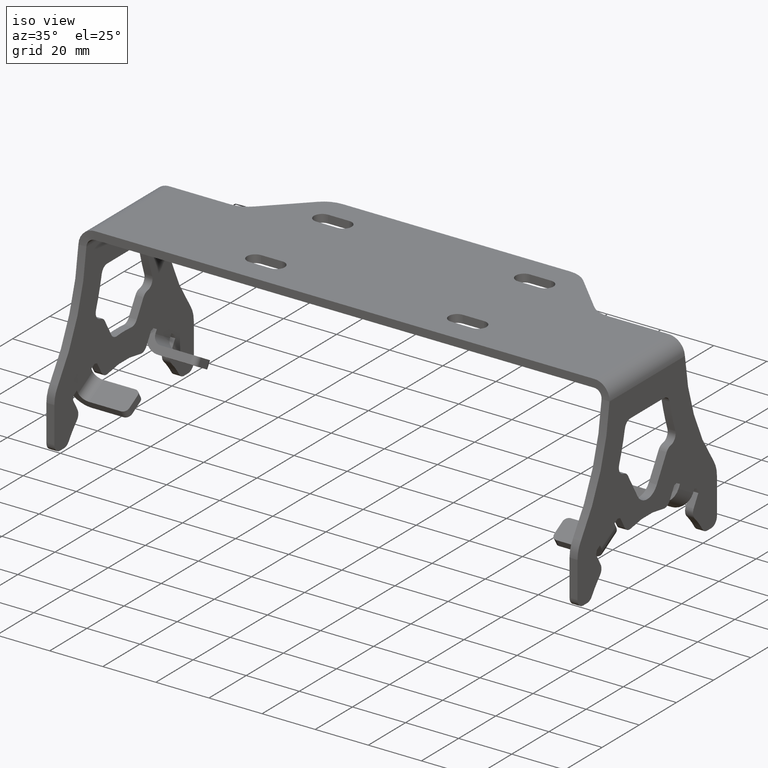
[diagram: clean part render]
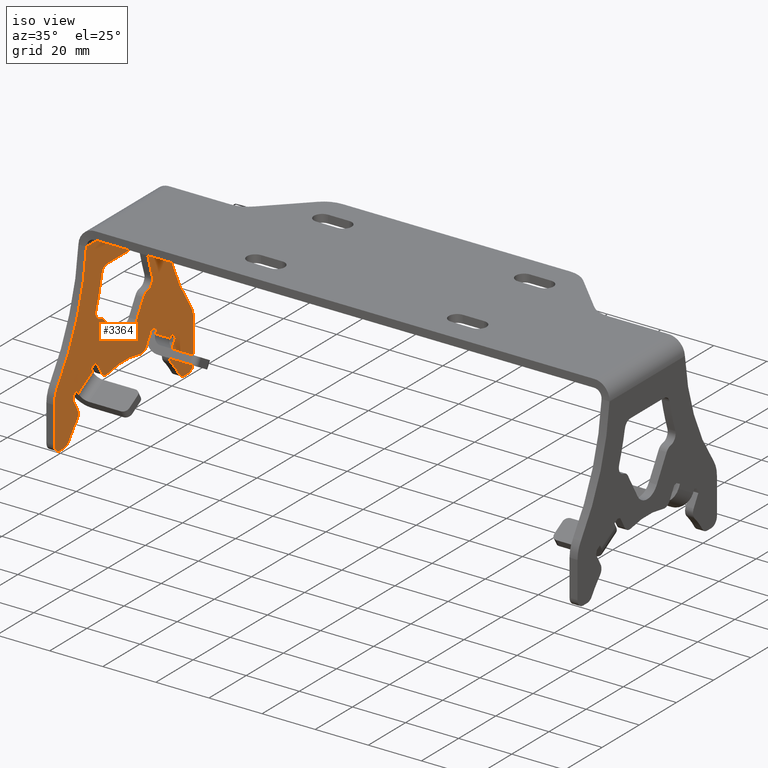
[diagram: same view with one face highlighted and labeled with its STEP entity id]
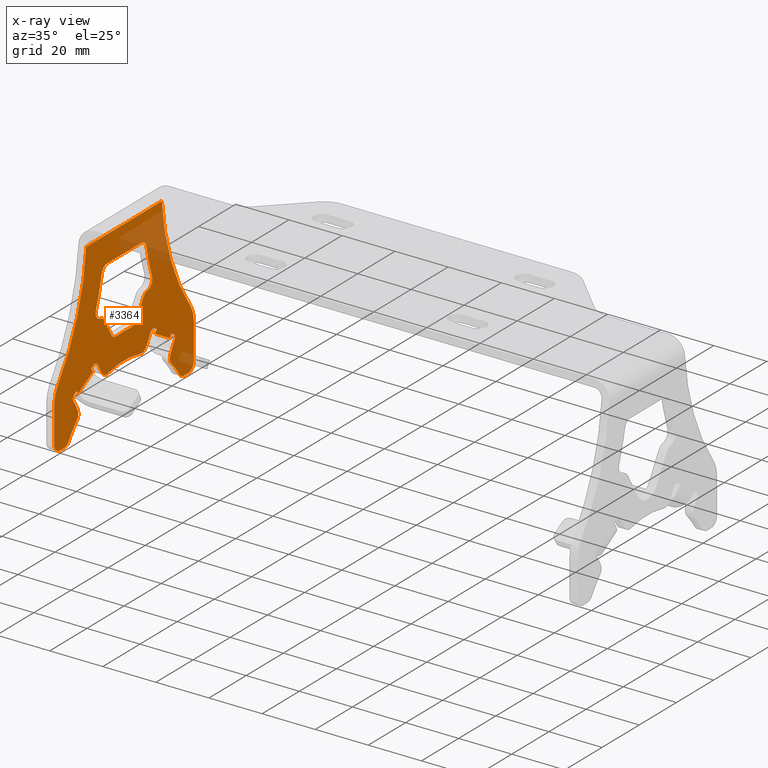
[diagram: x-ray of the same camera — body ghosted, the highlighted face saturated]
A machine part, iso view. The second image highlights one B-rep face of the part: STEP entity #3364.
The next image is the same camera in x-ray: the body ghosted, the highlighted face saturated — about 12% of this face is hidden behind the body in this view.
In plain terms, the highlighted planar face has unit normal (-1, 0, 0).
Its self-contained STEP definition (entity closure, byte-faithful):
#38=FACE_BOUND('',#642,.T.);
#136=CIRCLE('',#3606,35.5);
#138=CIRCLE('',#3609,35.5);
#140=CIRCLE('',#3612,35.5);
#150=CIRCLE('',#3637,3.);
#152=CIRCLE('',#3640,3.);
#153=CIRCLE('',#3642,3.);
#156=CIRCLE('',#3646,3.);
#158=CIRCLE('',#3649,3.);
#159=CIRCLE('',#3651,3.);
#161=CIRCLE('',#3654,3.);
#163=CIRCLE('',#3657,92.4414286425771);
#165=CIRCLE('',#3661,92.4414286425785);
#167=CIRCLE('',#3664,3.);
#169=CIRCLE('',#3668,45.4999999999994);
#171=CIRCLE('',#3674,3.);
#174=CIRCLE('',#3679,3.);
#175=CIRCLE('',#3682,3.);
#177=CIRCLE('',#3685,3.);
#179=CIRCLE('',#3689,3.);
#181=CIRCLE('',#3692,3.);
#183=CIRCLE('',#3695,3.);
#185=CIRCLE('',#3699,3.);
#191=CIRCLE('',#3707,82.4414286425785);
#192=CIRCLE('',#3709,10.);
#193=CIRCLE('',#3711,10.);
#194=CIRCLE('',#3712,82.4414286425771);
#448=FACE_OUTER_BOUND('',#641,.T.);
#641=EDGE_LOOP('',(#3005,#3006,#3007,#3008,#3009,#3010,#3011,#3012,#3013,
#3014,#3015,#3016,#3017,#3018,#3019,#3020,#3021,#3022,#3023,#3024,#3025,
#3026,#3027,#3028,#3029,#3030,#3031,#3032,#3033,#3034,#3035,#3036,#3037,
#3038,#3039,#3040,#3041,#3042));
#642=EDGE_LOOP('',(#3043,#3044,#3045,#3046,#3047,#3048,#3049,#3050,#3051,
#3052,#3053,#3054,#3055,#3056));
#877=LINE('',#5462,#1205);
#890=LINE('',#5596,#1218);
#892=LINE('',#5601,#1220);
#897=LINE('',#5611,#1225);
#901=LINE('',#5620,#1229);
#903=LINE('',#5625,#1231);
#908=LINE('',#5635,#1236);
#909=LINE('',#5638,#1237);
#911=LINE('',#5648,#1239);
#926=LINE('',#5720,#1254);
#929=LINE('',#5732,#1257);
#931=LINE('',#5738,#1259);
#936=LINE('',#5748,#1264);
#938=LINE('',#5754,#1266);
#944=LINE('',#5769,#1272);
#948=LINE('',#5781,#1276);
#953=LINE('',#5799,#1281);
#958=LINE('',#5820,#1286);
#968=LINE('',#5853,#1296);
#969=LINE('',#5854,#1297);
#970=LINE('',#5856,#1298);
#971=LINE('',#5857,#1299);
#972=LINE('',#5859,#1300);
#973=LINE('',#5860,#1301);
#974=LINE('',#5862,#1302);
#975=LINE('',#5863,#1303);
#1205=VECTOR('',#4377,10.);
#1218=VECTOR('',#4412,10.);
#1220=VECTOR('',#4416,10.);
#1225=VECTOR('',#4423,10.);
#1229=VECTOR('',#4429,10.);
#1231=VECTOR('',#4433,10.);
#1236=VECTOR('',#4440,10.);
#1237=VECTOR('',#4445,10.);
#1239=VECTOR('',#4463,10.);
#1254=VECTOR('',#4540,10.);
#1257=VECTOR('',#4557,10.);
#1259=VECTOR('',#4567,10.);
#1264=VECTOR('',#4574,10.);
#1266=VECTOR('',#4578,10.);
#1272=VECTOR('',#4592,10.);
#1276=VECTOR('',#4604,10.);
#1281=VECTOR('',#4623,10.);
#1286=VECTOR('',#4648,10.);
#1296=VECTOR('',#4686,10.);
#1297=VECTOR('',#4687,10.);
#1298=VECTOR('',#4688,10.);
#1299=VECTOR('',#4689,10.);
#1300=VECTOR('',#4690,10.);
#1301=VECTOR('',#4691,10.);
#1302=VECTOR('',#4692,10.);
#1303=VECTOR('',#4693,10.);
#1517=VERTEX_POINT('',#5460);
#1518=VERTEX_POINT('',#5461);
#1522=VERTEX_POINT('',#5563);
#1524=VERTEX_POINT('',#5567);
#1526=VERTEX_POINT('',#5572);
#1528=VERTEX_POINT('',#5576);
#1530=VERTEX_POINT('',#5581);
#1532=VERTEX_POINT('',#5585);
#1534=VERTEX_POINT('',#5590);
#1536=VERTEX_POINT('',#5594);
#1537=VERTEX_POINT('',#5598);
#1539=VERTEX_POINT('',#5604);
#1542=VERTEX_POINT('',#5609);
#1544=VERTEX_POINT('',#5614);
#1546=VERTEX_POINT('',#5618);
#1547=VERTEX_POINT('',#5622);
#1549=VERTEX_POINT('',#5628);
#1552=VERTEX_POINT('',#5633);
#1555=VERTEX_POINT('',#5660);
#1556=VERTEX_POINT('',#5662);
#1559=VERTEX_POINT('',#5669);
#1560=VERTEX_POINT('',#5671);
#1561=VERTEX_POINT('',#5675);
#1562=VERTEX_POINT('',#5676);
#1567=VERTEX_POINT('',#5687);
#1568=VERTEX_POINT('',#5689);
#1571=VERTEX_POINT('',#5696);
#1572=VERTEX_POINT('',#5698);
#1573=VERTEX_POINT('',#5702);
#1574=VERTEX_POINT('',#5703);
#1577=VERTEX_POINT('',#5711);
#1579=VERTEX_POINT('',#5726);
#1582=VERTEX_POINT('',#5742);
#1584=VERTEX_POINT('',#5746);
#1585=VERTEX_POINT('',#5750);
#1587=VERTEX_POINT('',#5753);
#1589=VERTEX_POINT('',#5759);
#1592=VERTEX_POINT('',#5766);
#1594=VERTEX_POINT('',#5775);
#1596=VERTEX_POINT('',#5779);
#1597=VERTEX_POINT('',#5786);
#1600=VERTEX_POINT('',#5793);
#1602=VERTEX_POINT('',#5797);
#1603=VERTEX_POINT('',#5804);
#1605=VERTEX_POINT('',#5810);
#1608=VERTEX_POINT('',#5817);
#1615=VERTEX_POINT('',#5844);
#1616=VERTEX_POINT('',#5850);
#1617=VERTEX_POINT('',#5852);
#1618=VERTEX_POINT('',#5855);
#1619=VERTEX_POINT('',#5858);
#1620=VERTEX_POINT('',#5861);
#1945=EDGE_CURVE('',#1517,#1518,#877,.T.);
#1956=EDGE_CURVE('',#1522,#1524,#136,.T.);
#1960=EDGE_CURVE('',#1526,#1528,#138,.T.);
#1964=EDGE_CURVE('',#1530,#1532,#140,.T.);
#1968=EDGE_CURVE('',#1534,#1536,#890,.T.);
#1970=EDGE_CURVE('',#1536,#1537,#892,.T.);
#1975=EDGE_CURVE('',#1539,#1542,#897,.T.);
#1979=EDGE_CURVE('',#1544,#1546,#901,.T.);
#1981=EDGE_CURVE('',#1546,#1547,#903,.T.);
#1986=EDGE_CURVE('',#1549,#1552,#908,.T.);
#1988=EDGE_CURVE('',#1537,#1539,#909,.T.);
#1994=EDGE_CURVE('',#1547,#1549,#911,.T.);
#2001=EDGE_CURVE('',#1555,#1556,#150,.T.);
#2005=EDGE_CURVE('',#1559,#1560,#152,.T.);
#2007=EDGE_CURVE('',#1561,#1562,#153,.T.);
#2013=EDGE_CURVE('',#1567,#1568,#156,.T.);
#2017=EDGE_CURVE('',#1571,#1572,#158,.T.);
#2019=EDGE_CURVE('',#1573,#1574,#159,.T.);
#2023=EDGE_CURVE('',#1574,#1577,#161,.T.);
#2026=EDGE_CURVE('',#1573,#1560,#163,.T.);
#2028=EDGE_CURVE('',#1559,#1556,#926,.T.);
#2030=EDGE_CURVE('',#1555,#1572,#165,.T.);
#2032=EDGE_CURVE('',#1579,#1571,#167,.T.);
#2035=EDGE_CURVE('',#1579,#1568,#929,.T.);
#2037=EDGE_CURVE('',#1567,#1562,#169,.T.);
#2039=EDGE_CURVE('',#1561,#1577,#931,.T.);
#2044=EDGE_CURVE('',#1582,#1584,#936,.T.);
#2046=EDGE_CURVE('',#1587,#1585,#938,.T.);
#2049=EDGE_CURVE('',#1587,#1589,#171,.T.);
#2054=EDGE_CURVE('',#1589,#1592,#944,.T.);
#2056=EDGE_CURVE('',#1592,#1528,#174,.T.);
#2060=EDGE_CURVE('',#1594,#1596,#948,.T.);
#2061=EDGE_CURVE('',#1526,#1596,#175,.T.);
#2063=EDGE_CURVE('',#1597,#1532,#177,.T.);
#2069=EDGE_CURVE('',#1600,#1602,#953,.T.);
#2070=EDGE_CURVE('',#1530,#1602,#179,.T.);
#2072=EDGE_CURVE('',#1603,#1524,#181,.T.);
#2075=EDGE_CURVE('',#1522,#1605,#183,.T.);
#2080=EDGE_CURVE('',#1605,#1608,#958,.T.);
#2081=EDGE_CURVE('',#1608,#1584,#185,.T.);
#2096=EDGE_CURVE('',#1615,#1517,#191,.T.);
#2097=EDGE_CURVE('',#1615,#1585,#192,.T.);
#2098=EDGE_CURVE('',#1582,#1616,#193,.T.);
#2099=EDGE_CURVE('',#1603,#1617,#968,.T.);
#2100=EDGE_CURVE('',#1544,#1617,#969,.T.);
#2101=EDGE_CURVE('',#1552,#1618,#970,.T.);
#2102=EDGE_CURVE('',#1600,#1618,#971,.T.);
#2103=EDGE_CURVE('',#1597,#1619,#972,.T.);
#2104=EDGE_CURVE('',#1534,#1619,#973,.T.);
#2105=EDGE_CURVE('',#1542,#1620,#974,.T.);
#2106=EDGE_CURVE('',#1594,#1620,#975,.T.);
#2107=EDGE_CURVE('',#1518,#1616,#194,.T.);
#3005=ORIENTED_EDGE('',*,*,#2098,.F.);
#3006=ORIENTED_EDGE('',*,*,#2044,.T.);
#3007=ORIENTED_EDGE('',*,*,#2081,.F.);
#3008=ORIENTED_EDGE('',*,*,#2080,.F.);
#3009=ORIENTED_EDGE('',*,*,#2075,.F.);
#3010=ORIENTED_EDGE('',*,*,#1956,.T.);
#3011=ORIENTED_EDGE('',*,*,#2072,.F.);
#3012=ORIENTED_EDGE('',*,*,#2099,.T.);
#3013=ORIENTED_EDGE('',*,*,#2100,.F.);
#3014=ORIENTED_EDGE('',*,*,#1979,.T.);
#3015=ORIENTED_EDGE('',*,*,#1981,.T.);
#3016=ORIENTED_EDGE('',*,*,#1994,.T.);
#3017=ORIENTED_EDGE('',*,*,#1986,.T.);
#3018=ORIENTED_EDGE('',*,*,#2101,.T.);
#3019=ORIENTED_EDGE('',*,*,#2102,.F.);
#3020=ORIENTED_EDGE('',*,*,#2069,.T.);
#3021=ORIENTED_EDGE('',*,*,#2070,.F.);
#3022=ORIENTED_EDGE('',*,*,#1964,.T.);
#3023=ORIENTED_EDGE('',*,*,#2063,.F.);
#3024=ORIENTED_EDGE('',*,*,#2103,.T.);
#3025=ORIENTED_EDGE('',*,*,#2104,.F.);
#3026=ORIENTED_EDGE('',*,*,#1968,.T.);
#3027=ORIENTED_EDGE('',*,*,#1970,.T.);
#3028=ORIENTED_EDGE('',*,*,#1988,.T.);
#3029=ORIENTED_EDGE('',*,*,#1975,.T.);
#3030=ORIENTED_EDGE('',*,*,#2105,.T.);
#3031=ORIENTED_EDGE('',*,*,#2106,.F.);
#3032=ORIENTED_EDGE('',*,*,#2060,.T.);
#3033=ORIENTED_EDGE('',*,*,#2061,.F.);
#3034=ORIENTED_EDGE('',*,*,#1960,.T.);
#3035=ORIENTED_EDGE('',*,*,#2056,.F.);
#3036=ORIENTED_EDGE('',*,*,#2054,.F.);
#3037=ORIENTED_EDGE('',*,*,#2049,.F.);
#3038=ORIENTED_EDGE('',*,*,#2046,.T.);
#3039=ORIENTED_EDGE('',*,*,#2097,.F.);
#3040=ORIENTED_EDGE('',*,*,#2096,.T.);
#3041=ORIENTED_EDGE('',*,*,#1945,.T.);
#3042=ORIENTED_EDGE('',*,*,#2107,.T.);
#3043=ORIENTED_EDGE('',*,*,#2037,.T.);
#3044=ORIENTED_EDGE('',*,*,#2007,.F.);
#3045=ORIENTED_EDGE('',*,*,#2039,.T.);
#3046=ORIENTED_EDGE('',*,*,#2023,.F.);
#3047=ORIENTED_EDGE('',*,*,#2019,.F.);
#3048=ORIENTED_EDGE('',*,*,#2026,.T.);
#3049=ORIENTED_EDGE('',*,*,#2005,.F.);
#3050=ORIENTED_EDGE('',*,*,#2028,.T.);
#3051=ORIENTED_EDGE('',*,*,#2001,.F.);
#3052=ORIENTED_EDGE('',*,*,#2030,.T.);
#3053=ORIENTED_EDGE('',*,*,#2017,.F.);
#3054=ORIENTED_EDGE('',*,*,#2032,.F.);
#3055=ORIENTED_EDGE('',*,*,#2035,.T.);
#3056=ORIENTED_EDGE('',*,*,#2013,.F.);
#3184=PLANE('',#3710);
#3364=ADVANCED_FACE('',(#448,#38),#3184,.F.);
#3606=AXIS2_PLACEMENT_3D('',#5569,#4389,#4390);
#3609=AXIS2_PLACEMENT_3D('',#5578,#4397,#4398);
#3612=AXIS2_PLACEMENT_3D('',#5587,#4405,#4406);
#3637=AXIS2_PLACEMENT_3D('',#5663,#4482,#4483);
#3640=AXIS2_PLACEMENT_3D('',#5672,#4490,#4491);
#3642=AXIS2_PLACEMENT_3D('',#5677,#4495,#4496);
#3646=AXIS2_PLACEMENT_3D('',#5690,#4506,#4507);
#3649=AXIS2_PLACEMENT_3D('',#5699,#4514,#4515);
#3651=AXIS2_PLACEMENT_3D('',#5704,#4519,#4520);
#3654=AXIS2_PLACEMENT_3D('',#5712,#4527,#4528);
#3657=AXIS2_PLACEMENT_3D('',#5717,#4534,#4535);
#3661=AXIS2_PLACEMENT_3D('',#5723,#4544,#4545);
#3664=AXIS2_PLACEMENT_3D('',#5727,#4550,#4551);
#3668=AXIS2_PLACEMENT_3D('',#5735,#4561,#4562);
#3674=AXIS2_PLACEMENT_3D('',#5760,#4583,#4584);
#3679=AXIS2_PLACEMENT_3D('',#5772,#4597,#4598);
#3682=AXIS2_PLACEMENT_3D('',#5783,#4607,#4608);
#3685=AXIS2_PLACEMENT_3D('',#5787,#4613,#4614);
#3689=AXIS2_PLACEMENT_3D('',#5801,#4626,#4627);
#3692=AXIS2_PLACEMENT_3D('',#5805,#4632,#4633);
#3695=AXIS2_PLACEMENT_3D('',#5811,#4639,#4640);
#3699=AXIS2_PLACEMENT_3D('',#5822,#4651,#4652);
#3707=AXIS2_PLACEMENT_3D('',#5846,#4676,#4677);
#3709=AXIS2_PLACEMENT_3D('',#5848,#4680,#4681);
#3710=AXIS2_PLACEMENT_3D('',#5849,#4682,#4683);
#3711=AXIS2_PLACEMENT_3D('',#5851,#4684,#4685);
#3712=AXIS2_PLACEMENT_3D('',#5864,#4694,#4695);
#4377=DIRECTION('',(0.,-1.,0.));
#4389=DIRECTION('center_axis',(-1.,0.,1.84007467098142E-15));
#4390=DIRECTION('ref_axis',(1.36467874985934E-15,-0.861921198917985,0.507042253521127));
#4397=DIRECTION('center_axis',(-1.,0.,1.84007467098142E-15));
#4398=DIRECTION('ref_axis',(1.99394413079214E-15,0.671677242289599,0.740843898665731));
#4405=DIRECTION('center_axis',(-1.,0.,1.84007467098142E-15));
#4406=DIRECTION('ref_axis',(2.56256027656686E-15,-0.305751015338425,0.952111504299534));
#4412=DIRECTION('',(-9.20037335490711E-16,0.866025403784438,-0.500000000000001));
#4416=DIRECTION('',(-1.5935514099302E-15,-0.5,-0.866025403784439));
#4423=DIRECTION('',(1.5935514099302E-15,0.5,0.866025403784439));
#4429=DIRECTION('',(9.20037335490706E-16,0.86602540378444,0.499999999999998));
#4433=DIRECTION('',(-1.5935514099302E-15,0.499999999999999,-0.866025403784439));
#4440=DIRECTION('',(1.5935514099302E-15,-0.499999999999999,0.866025403784439));
#4445=DIRECTION('',(-9.20037335490711E-16,0.866025403784438,-0.500000000000001));
#4463=DIRECTION('',(9.20037335490708E-16,0.866025403784439,0.499999999999999));
#4482=DIRECTION('center_axis',(1.,0.,-1.84007467098142E-15));
#4483=DIRECTION('ref_axis',(0.,0.62955994286868,0.776951915072731));
#4490=DIRECTION('center_axis',(1.,0.,-1.84007467098142E-15));
#4491=DIRECTION('ref_axis',(0.,-0.629559879154679,0.776951966699838));
#4495=DIRECTION('center_axis',(1.,0.,-1.84007467098142E-15));
#4496=DIRECTION('ref_axis',(0.,-0.461779027114715,-0.886995000051853));
#4506=DIRECTION('center_axis',(1.,0.,-1.84007467098142E-15));
#4507=DIRECTION('ref_axis',(0.,0.461779027114701,-0.88699500005186));
#4514=DIRECTION('center_axis',(1.,0.,-1.84007467098142E-15));
#4515=DIRECTION('ref_axis',(0.,0.944754534548987,0.327778689742222));
#4519=DIRECTION('center_axis',(1.,0.,-1.84007467098142E-15));
#4520=DIRECTION('ref_axis',(0.,-0.944754471799468,0.327778870604725));
#4527=DIRECTION('center_axis',(-1.,0.,1.84007467098142E-15));
#4528=DIRECTION('ref_axis',(0.,0.552956208785422,0.833210316286142));
#4534=DIRECTION('center_axis',(1.,0.,-1.84007467098142E-15));
#4535=DIRECTION('ref_axis',(-2.44361462179158E-16,0.983375525815702,-0.181583521352272));
#4540=DIRECTION('',(-7.08305686973369E-31,1.,-3.84933121543154E-16));
#4544=DIRECTION('center_axis',(1.,0.,-1.84007467098142E-15));
#4545=DIRECTION('ref_axis',(-5.54725221084057E-16,-0.911087528399442,-0.412212949329586));
#4550=DIRECTION('center_axis',(-1.,0.,1.84007467098142E-15));
#4551=DIRECTION('ref_axis',(0.,-0.552956745400652,0.833209960163654));
#4557=DIRECTION('',(-1.5935514099302E-15,-0.5,-0.866025403784438));
#4561=DIRECTION('center_axis',(1.,0.,-1.84007467098142E-15));
#4562=DIRECTION('ref_axis',(1.33457656688711E-15,-0.128451767775201,0.991715757339484));
#4567=DIRECTION('',(1.5935514099302E-15,-0.499999999999998,0.86602540378444));
#4574=DIRECTION('',(-1.84007467098142E-15,0.,-1.));
#4578=DIRECTION('',(1.84007467098142E-15,8.88178419700124E-16,1.));
#4583=DIRECTION('center_axis',(-1.,0.,1.84007467098142E-15));
#4584=DIRECTION('ref_axis',(0.,0.707106781186548,-0.707106781186548));
#4592=DIRECTION('',(0.,-1.,0.));
#4597=DIRECTION('center_axis',(-1.,0.,1.84007467098142E-15));
#4598=DIRECTION('ref_axis',(0.,-0.476731294622794,-0.879049072991534));
#4604=DIRECTION('',(-1.59355140993019E-15,-0.500000000000014,-0.866025403784431));
#4607=DIRECTION('center_axis',(-1.,0.,1.84007467098142E-15));
#4608=DIRECTION('ref_axis',(0.,-0.992360624285522,-0.123370950258351));
#4613=DIRECTION('center_axis',(-1.,0.,1.84007467098142E-15));
#4614=DIRECTION('ref_axis',(0.,0.389337935129989,-0.921094985475829));
#4623=DIRECTION('',(-1.59355140993022E-15,0.499999999999985,-0.866025403784447));
#4626=DIRECTION('center_axis',(-1.,0.,1.84007467098142E-15));
#4627=DIRECTION('ref_axis',(0.,-0.389337935130004,-0.921094985475822));
#4632=DIRECTION('center_axis',(-1.,0.,1.84007467098142E-15));
#4633=DIRECTION('ref_axis',(0.,0.992360624285521,-0.123370950258361));
#4639=DIRECTION('center_axis',(-1.,0.,1.84007467098142E-15));
#4640=DIRECTION('ref_axis',(0.,0.476731294622795,-0.879049072991533));
#4648=DIRECTION('',(0.,-1.,0.));
#4651=DIRECTION('center_axis',(-1.,0.,1.84007467098142E-15));
#4652=DIRECTION('ref_axis',(0.,-0.707106781186548,-0.707106781186548));
#4676=DIRECTION('center_axis',(-1.,0.,1.84007467098142E-15));
#4677=DIRECTION('ref_axis',(-1.13352851147788E-15,-0.787728084190875,-0.616023104580481));
#4680=DIRECTION('center_axis',(-1.,0.,1.84007467098142E-15));
#4681=DIRECTION('ref_axis',(0.,0.951496437087981,0.307659763714524));
#4682=DIRECTION('center_axis',(-1.,0.,1.84007467098142E-15));
#4683=DIRECTION('ref_axis',(0.,-1.,0.));
#4684=DIRECTION('center_axis',(-1.,0.,1.84007467098142E-15));
#4685=DIRECTION('ref_axis',(0.,-0.951496437087984,0.307659763714515));
#4686=DIRECTION('',(1.5935514099302E-15,-0.500000000000002,0.866025403784437));
#4687=DIRECTION('',(-1.77737564700131E-15,-0.258819045102533,-0.965925826289065));
#4688=DIRECTION('',(9.20037335490706E-16,0.86602540378444,0.499999999999998));
#4689=DIRECTION('',(4.76246369260647E-16,-0.965925826289083,0.258819045102467));
#4690=DIRECTION('',(1.59355140993019E-15,0.500000000000011,0.866025403784432));
#4691=DIRECTION('',(-4.76246369260818E-16,-0.965925826289058,-0.25881904510256));
#4692=DIRECTION('',(-9.20037335490711E-16,0.866025403784438,-0.500000000000001));
#4693=DIRECTION('',(1.77737564700129E-15,-0.258819045102563,0.965925826289057));
#4694=DIRECTION('center_axis',(-1.,0.,1.84007467098142E-15));
#4695=DIRECTION('ref_axis',(0.,1.,0.));
#5460=CARTESIAN_POINT('',(-97.,10.279748169484,-2.99999999999999));
#5461=CARTESIAN_POINT('',(-97.,-30.2797494342295,-2.99999999999999));
#5462=CARTESIAN_POINT('',(-97.,-5.,-2.99999999999999));
#5563=CARTESIAN_POINT('',(-97.0000000000003,-39.7539843848997,-65.6363636363636));
#5567=CARTESIAN_POINT('',(-97.0000000000002,-35.4618225989662,-60.2624659689213));
#5569=CARTESIAN_POINT('Origin',(-97.0000000000003,-10.,-85.));
#5572=CARTESIAN_POINT('',(-97.0000000000002,15.4618225989663,-60.2624659689214));
#5576=CARTESIAN_POINT('',(-97.0000000000003,19.7539843848997,-65.6363636363636));
#5578=CARTESIAN_POINT('Origin',(-97.0000000000003,-10.,-85.));
#5581=CARTESIAN_POINT('',(-97.0000000000002,-18.6924215984129,-50.5806477871032));
#5585=CARTESIAN_POINT('',(-97.0000000000002,-1.30757840158696,-50.5806477871032));
#5587=CARTESIAN_POINT('Origin',(-97.0000000000003,-10.,-85.));
#5590=CARTESIAN_POINT('',(-97.0000000000001,5.87083487540114,-44.5109076372692));
#5594=CARTESIAN_POINT('',(-97.,7.60288568297002,-45.5109076372692));
#5596=CARTESIAN_POINT('',(-97.,-27.5718905157367,-25.2027411302609));
#5598=CARTESIAN_POINT('',(-97.,6.85288568297002,-46.8099457429458));
#5601=CARTESIAN_POINT('',(-97.,37.6771809345151,6.57929974023423));
#5604=CARTESIAN_POINT('',(-97.0000000000001,14.64711431703,-51.3099457429458));
#5609=CARTESIAN_POINT('',(-97.0000000000001,15.39711431703,-50.0109076372692));
#5611=CARTESIAN_POINT('',(-97.,43.596409568575,-1.16829552395743));
#5614=CARTESIAN_POINT('',(-97.0000000000001,-37.1291651245987,-51.0109076372691));
#5618=CARTESIAN_POINT('',(-97.0000000000001,-35.3971143170299,-50.0109076372691));
#5620=CARTESIAN_POINT('',(-97.,8.57669998735337,-24.6226141113389));
#5622=CARTESIAN_POINT('',(-97.0000000000001,-34.6471143170299,-51.3099457429458));
#5625=CARTESIAN_POINT('',(-97.,-62.9714095685749,-2.25082727868779));
#5628=CARTESIAN_POINT('',(-97.,-26.8528856829699,-46.8099457429458));
#5633=CARTESIAN_POINT('',(-97.,-27.6028856829699,-45.5109076372691));
#5635=CARTESIAN_POINT('',(-97.,-53.3021809345149,-0.998422542879465));
#5638=CARTESIAN_POINT('',(-97.,-27.02285241006,-27.2517792359376));
#5648=CARTESIAN_POINT('',(-97.,10.6257380930301,-25.1716522170155));
#5660=CARTESIAN_POINT('',(-97.,2.00823396877745,-15.3780743299889));
#5662=CARTESIAN_POINT('',(-97.,-0.92659285081197,-13.));
#5663=CARTESIAN_POINT('Origin',(-97.,-0.926592850811971,-16.));
#5669=CARTESIAN_POINT('',(-97.,-19.0734103942668,-13.));
#5671=CARTESIAN_POINT('',(-97.,-22.008237111854,-15.3780738486475));
#5672=CARTESIAN_POINT('Origin',(-97.,-19.0734103942668,-16.));
#5675=CARTESIAN_POINT('',(-97.,-16.8218164096081,-38.1842673786516));
#5676=CARTESIAN_POINT('',(-96.9999999999999,-13.9624779179504,-39.672869396467));
#5677=CARTESIAN_POINT('Origin',(-97.,-14.2237401982547,-36.6842673786516));
#5687=CARTESIAN_POINT('',(-96.9999999999999,-6.03752208204967,-39.6728693964671));
#5689=CARTESIAN_POINT('',(-97.,-3.17818359039188,-38.1842673786517));
#5690=CARTESIAN_POINT('Origin',(-97.,-5.77625980174521,-36.6842673786517));
#5696=CARTESIAN_POINT('',(-97.,2.64559874490872,-30.4745765841858));
#5698=CARTESIAN_POINT('',(-97.,5.10696975231447,-26.5145055399121));
#5699=CARTESIAN_POINT('Origin',(-97.,2.27270614866751,-27.4978416091387));
#5702=CARTESIAN_POINT('',(-97.,-25.106975552971,-26.5145069457973));
#5703=CARTESIAN_POINT('',(-97.,-22.6456008995795,-30.4745790129667));
#5704=CARTESIAN_POINT('Origin',(-97.,-22.2727121375726,-27.4978435576115));
#5711=CARTESIAN_POINT('',(-97.,-20.4204134502331,-31.951314468322));
#5712=CARTESIAN_POINT('Origin',(-97.,-23.0184896615864,-33.451314468322));
#5717=CARTESIAN_POINT('Origin',(-96.9999999999999,-112.441428642577,3.78584013175393));
#5720=CARTESIAN_POINT('',(-97.,0.768393658188163,-13.));
#5723=CARTESIAN_POINT('Origin',(-96.9999999999999,92.4414286425771,3.78582481845139));
#5726=CARTESIAN_POINT('',(-97.,0.42041512979663,-31.9513115592329));
#5727=CARTESIAN_POINT('Origin',(-97.,3.01849134114994,-33.4513115592329));
#5732=CARTESIAN_POINT('',(-97.,26.1688506853173,12.6462870383419));
#5735=CARTESIAN_POINT('Origin',(-97.,-10.0000000000006,-84.9999999999996));
#5738=CARTESIAN_POINT('',(-96.9999999999999,-46.4188506853172,13.0792997402345));
#5742=CARTESIAN_POINT('',(-97.0000000000001,-47.5,-50.336244108325));
#5746=CARTESIAN_POINT('',(-97.0000000000001,-47.5,-64.));
#5748=CARTESIAN_POINT('',(-96.9999999999999,-47.5,25.3929277225283));
#5750=CARTESIAN_POINT('',(-97.0000000000001,27.5,-50.3362594216299));
#5753=CARTESIAN_POINT('',(-97.0000000000001,27.5,-64.));
#5754=CARTESIAN_POINT('',(-96.9999999999999,27.5000000000001,15.392920065877));
#5759=CARTESIAN_POINT('',(-97.0000000000001,24.5,-67.));
#5760=CARTESIAN_POINT('Origin',(-97.0000000000001,24.5,-64.));
#5766=CARTESIAN_POINT('',(-97.0000000000001,22.2684056005251,-67.));
#5769=CARTESIAN_POINT('',(-97.0000000000001,-2.79776202205539E-13,-67.));
#5772=CARTESIAN_POINT('Origin',(-97.0000000000002,22.2684056005251,-64.));
#5775=CARTESIAN_POINT('',(-97.0000000000001,17.4951905283834,-52.3769330410537));
#5779=CARTESIAN_POINT('',(-97.0000000000001,15.0154497058355,-56.6719701353091));
#5781=CARTESIAN_POINT('',(-97.,45.9941615663776,-3.01526723981558));
#5783=CARTESIAN_POINT('Origin',(-97.0000000000002,17.6135259171888,-58.1719701353092));
#5786=CARTESIAN_POINT('',(-97.0000000000001,2.02506864906884,-49.1719701353092));
#5787=CARTESIAN_POINT('Origin',(-97.0000000000002,-0.573007562284457,-47.6719701353092));
#5793=CARTESIAN_POINT('',(-97.0000000000001,-24.5048094716165,-44.8769330410535));
#5797=CARTESIAN_POINT('',(-97.0000000000001,-22.0250686490687,-49.1719701353091));
#5799=CARTESIAN_POINT('',(-97.,-50.5037805096099,0.154605741264606));
#5801=CARTESIAN_POINT('Origin',(-97.0000000000002,-19.4269924377154,-47.6719701353091));
#5804=CARTESIAN_POINT('',(-97.0000000000001,-35.0154497058353,-56.6719701353091));
#5805=CARTESIAN_POINT('Origin',(-97.0000000000002,-37.6135259171887,-58.1719701353091));
#5810=CARTESIAN_POINT('',(-97.0000000000001,-42.2684056005251,-67.));
#5811=CARTESIAN_POINT('Origin',(-97.0000000000002,-42.2684056005251,-64.));
#5817=CARTESIAN_POINT('',(-97.0000000000001,-44.5,-67.));
#5820=CARTESIAN_POINT('',(-97.0000000000001,-2.79776202205539E-13,-67.));
#5822=CARTESIAN_POINT('Origin',(-97.0000000000001,-44.5,-64.));
#5844=CARTESIAN_POINT('',(-97.0000000000001,25.6069093958225,-44.4815160414359));
#5846=CARTESIAN_POINT('Origin',(-97.,92.4414286425771,3.78582481845143));
#5848=CARTESIAN_POINT('Origin',(-97.0000000000001,17.5,-50.3362594216299));
#5849=CARTESIAN_POINT('Origin',(-96.9999999999998,0.,97.785840131754));
#5850=CARTESIAN_POINT('',(-97.0000000000001,-45.6069093958226,-44.4815007281311));
#5851=CARTESIAN_POINT('Origin',(-97.0000000000001,-37.5,-50.336244108325));
#5852=CARTESIAN_POINT('',(-97.0000000000001,-37.4951905283832,-52.3769330410535));
#5853=CARTESIAN_POINT('',(-97.,-63.6944857799283,-6.99842254287971));
#5854=CARTESIAN_POINT('',(-96.9999999999999,-17.3774867780688,22.703359486735));
#5855=CARTESIAN_POINT('',(-97.,-25.8708348754011,-44.5109076372691));
#5856=CARTESIAN_POINT('',(-97.,13.77285241006,-21.6226141113389));
#5857=CARTESIAN_POINT('',(-97.0000000000001,-31.2475132219263,-43.0702310163561));
#5858=CARTESIAN_POINT('',(-97.0000000000001,4.50480947161677,-44.8769330410536));
#5859=CARTESIAN_POINT('',(-97.,33.2041047231622,4.83170447604175));
#5860=CARTESIAN_POINT('',(-97.,20.577640240855,-40.5702310163535));
#5861=CARTESIAN_POINT('',(-97.0000000000001,17.1291651245988,-51.0109076372692));
#5862=CARTESIAN_POINT('',(-97.,-22.3757380930301,-28.2027411302609));
#5863=CARTESIAN_POINT('',(-96.9999999999999,-1.95264024085537,20.2033594867339));
#5864=CARTESIAN_POINT('Origin',(-97.,-112.441428642577,3.78584013175396));